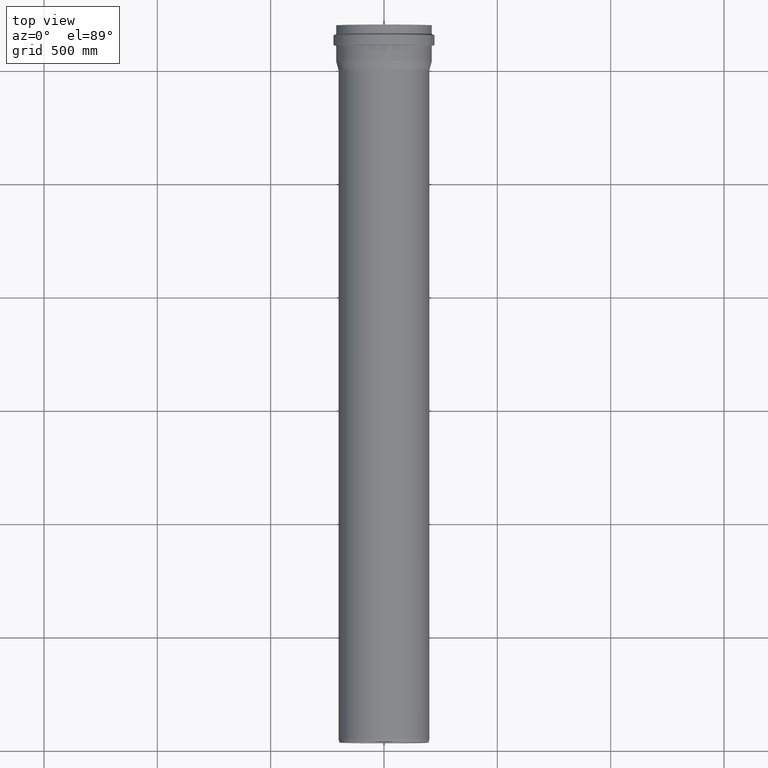
[diagram: clean part render]
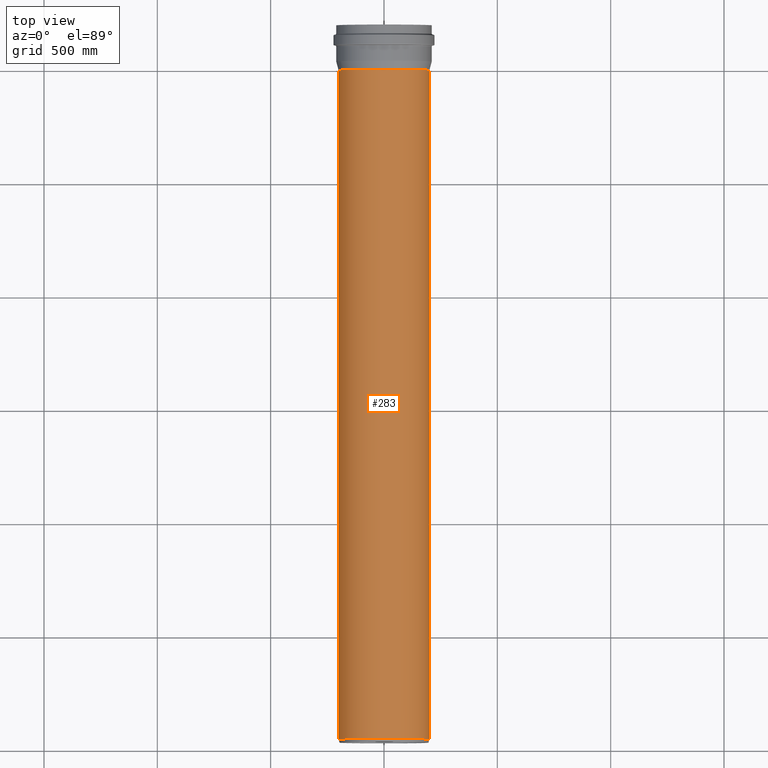
[diagram: same view with one face highlighted and labeled with its STEP entity id]
A machine part, top view. The second image highlights one B-rep face of the part: STEP entity #283.
In plain terms, the highlighted cylindrical surface (bore or boss wall) has radius 200.175 mm, axis along (0, -1, 0).
Its self-contained STEP definition (entity closure, byte-faithful):
#23=CYLINDRICAL_SURFACE('',#330,200.175);
#50=FACE_BOUND('',#119,.T.);
#75=FACE_OUTER_BOUND('',#118,.T.);
#118=EDGE_LOOP('',(#243));
#119=EDGE_LOOP('',(#244));
#152=CIRCLE('',#331,200.175);
#153=CIRCLE('',#332,200.175000000001);
#177=VERTEX_POINT('',#504);
#178=VERTEX_POINT('',#506);
#202=EDGE_CURVE('',#177,#177,#152,.T.);
#203=EDGE_CURVE('',#178,#178,#153,.T.);
#243=ORIENTED_EDGE('',*,*,#202,.T.);
#244=ORIENTED_EDGE('',*,*,#203,.F.);
#283=ADVANCED_FACE('',(#75,#50),#23,.T.);
#330=AXIS2_PLACEMENT_3D('',#503,#420,#421);
#331=AXIS2_PLACEMENT_3D('',#505,#422,#423);
#332=AXIS2_PLACEMENT_3D('',#507,#424,#425);
#420=DIRECTION('center_axis',(0.,-1.,0.));
#421=DIRECTION('ref_axis',(1.,0.,0.));
#422=DIRECTION('center_axis',(0.,-1.,0.));
#423=DIRECTION('ref_axis',(1.,0.,0.));
#424=DIRECTION('center_axis',(0.,-1.,0.));
#425=DIRECTION('ref_axis',(1.,0.,0.));
#503=CARTESIAN_POINT('Origin',(0.,-1475.69501911571,0.));
#504=CARTESIAN_POINT('',(200.175,1.00421037530083E-15,0.));
#505=CARTESIAN_POINT('Origin',(0.,0.,0.));
#506=CARTESIAN_POINT('',(200.175000000001,-2951.39003823142,0.));
#507=CARTESIAN_POINT('Origin',(0.,-2951.39003823142,0.));